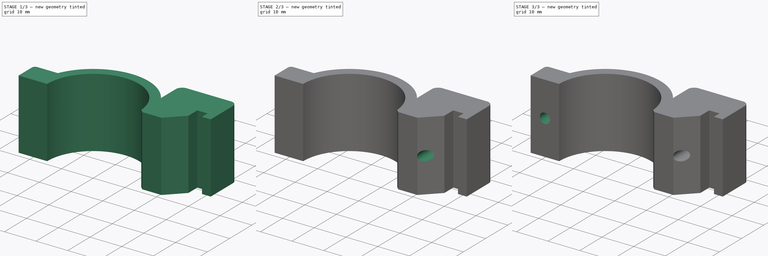
[diagram: build sequence overview — one tinted view per stage of 3, left to right]
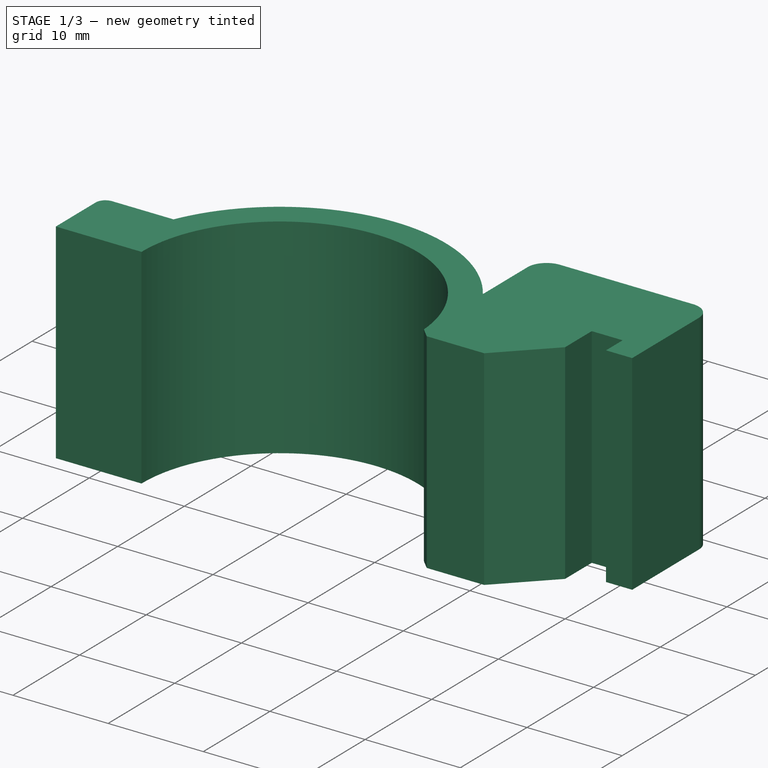
[diagram: stage 1 of 3 — iso view after this stage's code; geometry added in this stage tinted green]
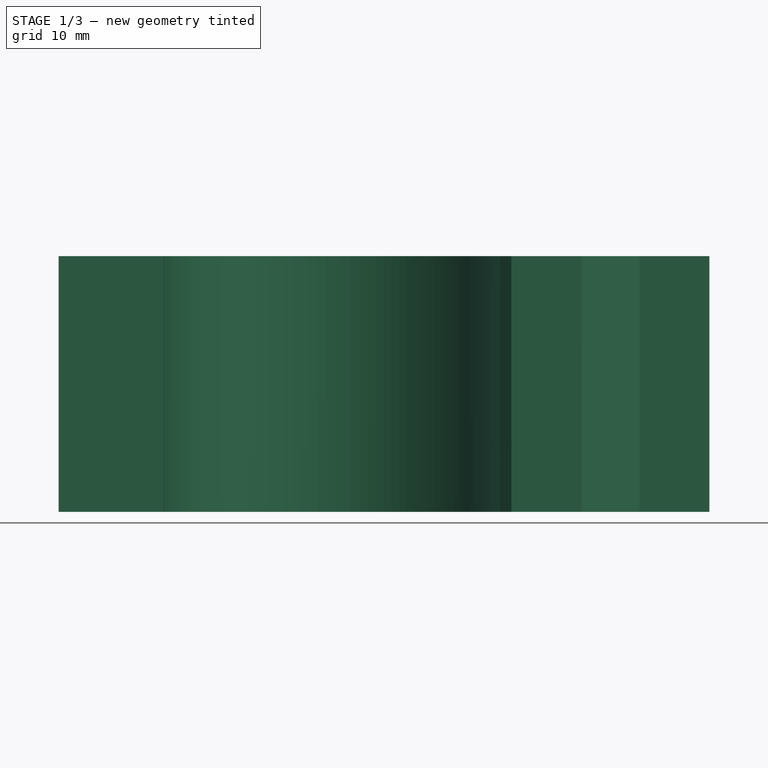
[diagram: stage 1 of 3 — front view after this stage's code; geometry added in this stage tinted green]
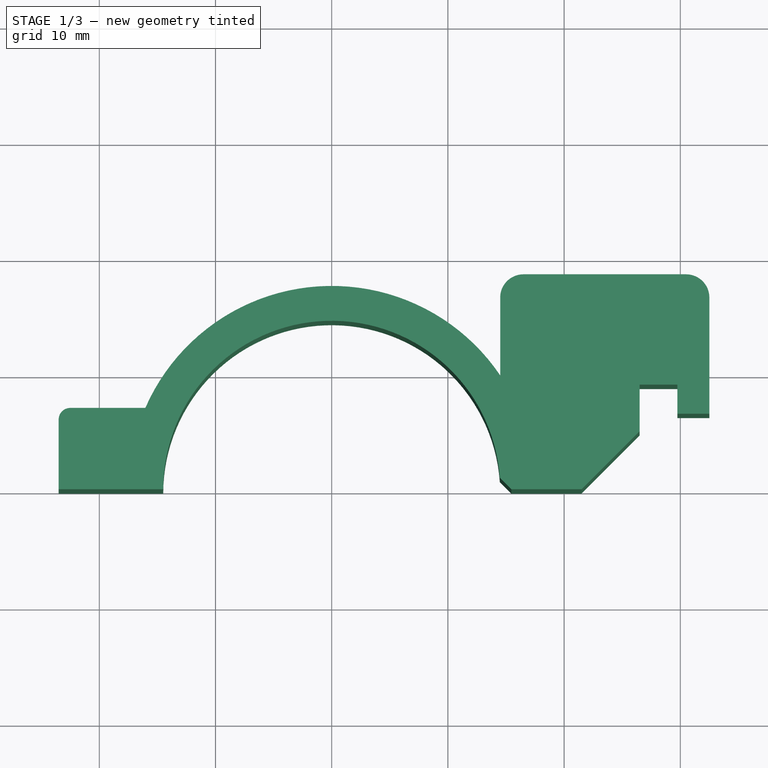
[diagram: stage 1 of 3 — top view after this stage's code; geometry added in this stage tinted green]
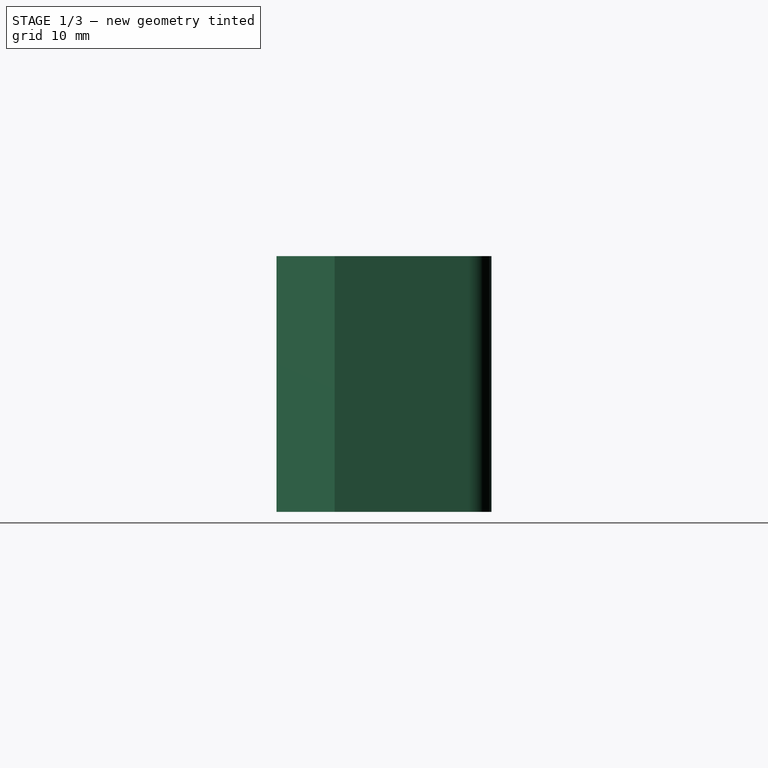
[diagram: stage 1 of 3 — right view after this stage's code; geometry added in this stage tinted green]
FCSTD DOCUMENT  (FreeCAD 0.14R3702 (Git))
Label: nerf_30mm_scope_mount
License: CC-BY 3.0
LicenseURL: http://creativecommons.org/licenses/by/3.0/
objects: Sketcher::SketchObject×5, PartDesign::Pocket×4, PartDesign::Pad×1
note: 15 computed .brp shape members not serialized (recipe doc carries the construction recipe); baked Part::Feature solids carry a one-line shape summary decoded from their .brp

FEATURE [Sketcher::SketchObject] Sketch  label="main body"
  sketch-geometry (18):
    g0: ArcOfCircle CenterX=0 CenterY=0 CenterZ=0 NormalX=0 NormalY=0 NormalZ=1 Radius=14.5 StartAngle=0.0690203 EndAngle=3.14159
    g1: ArcOfCircle CenterX=0 CenterY=0 CenterZ=0 NormalX=0 NormalY=0 NormalZ=1 Radius=17.5 StartAngle=0.594245 EndAngle=2.73008
    g2: LineSegment StartX=32.5 StartY=6.5 StartZ=0 EndX=32.5 EndY=16.5 EndZ=0
    g3: LineSegment StartX=30.5 StartY=18.5 StartZ=0 EndX=16.5 EndY=18.5 EndZ=0
    g4: LineSegment StartX=14.5 StartY=16.5 StartZ=0 EndX=14.5 EndY=9.79796 EndZ=0
    g5: LineSegment StartX=26.5 StartY=5 StartZ=0 EndX=26.5 EndY=9 EndZ=0
    g6: LineSegment StartX=26.5 StartY=9 StartZ=0 EndX=29.75 EndY=9 EndZ=0
    g7: LineSegment StartX=29.75 StartY=9 StartZ=0 EndX=29.75 EndY=6.5 EndZ=0
    g8: LineSegment StartX=29.75 StartY=6.5 StartZ=0 EndX=32.5 EndY=6.5 EndZ=0
    g9: LineSegment StartX=-14.5 StartY=0 StartZ=0 EndX=-23.5 EndY=0 EndZ=0
    g10: LineSegment StartX=-23.5 StartY=0 StartZ=0 EndX=-23.5 EndY=6 EndZ=0
    g11: LineSegment StartX=-22.5 StartY=7 StartZ=0 EndX=-16.039 EndY=7 EndZ=0
    g12: ArcOfCircle CenterX=16.5 CenterY=16.5 CenterZ=0 NormalX=0 NormalY=0 NormalZ=1 Radius=2 StartAngle=1.5708 EndAngle=3.14159
    g13: ArcOfCircle CenterX=-22.5 CenterY=6 CenterZ=0 NormalX=0 NormalY=0 NormalZ=1 Radius=1 StartAngle=1.5708 EndAngle=3.14159
    g14: LineSegment StartX=15.4655 StartY=0 StartZ=0 EndX=21.5 EndY=0 EndZ=0
    g15: ArcOfCircle CenterX=30.5 CenterY=16.5 CenterZ=0 NormalX=0 NormalY=0 NormalZ=1 Radius=2 StartAngle=0 EndAngle=1.5708
    g16: LineSegment StartX=26.5 StartY=5 StartZ=0 EndX=21.5 EndY=0 EndZ=0
    g17: LineSegment StartX=14.4655 StartY=1 StartZ=0 EndX=15.4655 EndY=0 EndZ=0
  constraints (51):
    c: Coincident(g0,g-1)
    c: Coincident(g1,g-1)
    c: Horizontal(g3)
    c: Vertical(g2)
    c: Vertical(g4)
    c: Coincident(g1,g4)
    c: Radius(g1) = 17.5
    c: Radius(g0) = 14.5
    c: DistanceX(g-1,g1) = 14.5
    c: Coincident(g5,g6)
    c: Horizontal(g6)
    c: Coincident(g6,g7)
    c: Vertical(g7)
    c: Coincident(g7,g8)
    c: Coincident(g8,g2)
    c: Horizontal(g8)
    c: DistanceX(g8) = 2.75
    c: DistanceX(g6) = 3.25
    c: Coincident(g9,g10)
    c: Horizontal(g9)
    c: Horizontal(g11)
    c: Vertical(g10)
    c: Coincident(g9,g0)
    c: Coincident(g11,g1)
    c: DistanceX(g9) = -9
    c: PointOnObject(g0,g-1)
    c: Tangent(g3,g12)
    c: Tangent(g4,g12)
    c: Radius(g12) = 2
    c: Tangent(g10,g13)
    c: Tangent(g11,g13)
    c: Radius(g13) = 1
    c: DistanceY(g11,g9) = -7
    c: Horizontal(g14)
    c: Tangent(g2,g15)
    c: Tangent(g3,g15)
    c: Radius(g15) = 2
    c: DistanceY(g3,g2) = -12
    c: DistanceY(g7,g6) = 2.5
    c: Vertical(g5)
    c: DistanceY(g5) = 4
    c: Coincident(g16,g5)
    c: Coincident(g16,g14)
    c: Angle(g16) = -2.35619
    c: DistanceY(g6,g14) = -9
    c: Angle(g17) = -0.785398
    c: Coincident(g14,g17)
    c: Coincident(g0,g17)
    c: DistanceX(g14,g0) = -1
    c: PointOnObject(g14,g-1)
    c: DistanceX(g1,g5) = 12
FEATURE [PartDesign::Pad] Pad
  Length = 22
  Length2 = 100
  Sketch = -> Sketch
  Type = 0
FEATURE [Sketcher::SketchObject] Sketch002  label="bottom_nut_inset"
  Placement = pos=(0,18.5,0) rot=(0,0.707107,0.707107;3.14159rad)
  Support = -> Pad [Face9]
  sketch-geometry (7):
    g0: Circle CenterX=-23 CenterY=11 CenterZ=0 NormalX=0 NormalY=0 NormalZ=1 Radius=2.75
    g1: LineSegment StartX=-24.5877 StartY=13.75 StartZ=0 EndX=-21.4123 EndY=13.75 EndZ=0
    g2: LineSegment StartX=-21.4123 StartY=13.75 StartZ=0 EndX=-19.8246 EndY=11 EndZ=0
    g3: LineSegment StartX=-19.8246 StartY=11 StartZ=0 EndX=-21.4123 EndY=8.25 EndZ=0
    g4: LineSegment StartX=-21.4123 StartY=8.25 StartZ=0 EndX=-24.5877 EndY=8.25 EndZ=0
    g5: LineSegment StartX=-24.5877 StartY=8.25 StartZ=0 EndX=-26.1754 EndY=11 EndZ=0
    g6: LineSegment StartX=-26.1754 StartY=11 StartZ=0 EndX=-24.5877 EndY=13.75 EndZ=0
  constraints (22):
    c: DistanceY(g-1,g0) = 11
    c: DistanceX(g-1,g0) = -23
    c: Radius(g0) = 2.75
    c: Horizontal(g1)
    c: Tangent(g1,g0)
    c: Coincident(g1,g2)
    c: Tangent(g2,g0)
    c: Coincident(g2,g3)
    c: Tangent(g3,g0)
    c: Coincident(g3,g4)
    c: Horizontal(g4)
    c: Tangent(g4,g0)
    c: Coincident(g4,g5)
    c: Tangent(g5,g0)
    c: Coincident(g5,g6)
    c: Coincident(g6,g1)
    c: Tangent(g6,g0)
    c: Equal(g6,g5)
    c: Equal(g5,g4)
    c: Equal(g4,g3)
    c: Equal(g3,g2)
    c: Equal(g2,g1)
FEATURE [PartDesign::Pocket] Pocket
  Length = 3
  Sketch = -> Sketch002
  Type = 0
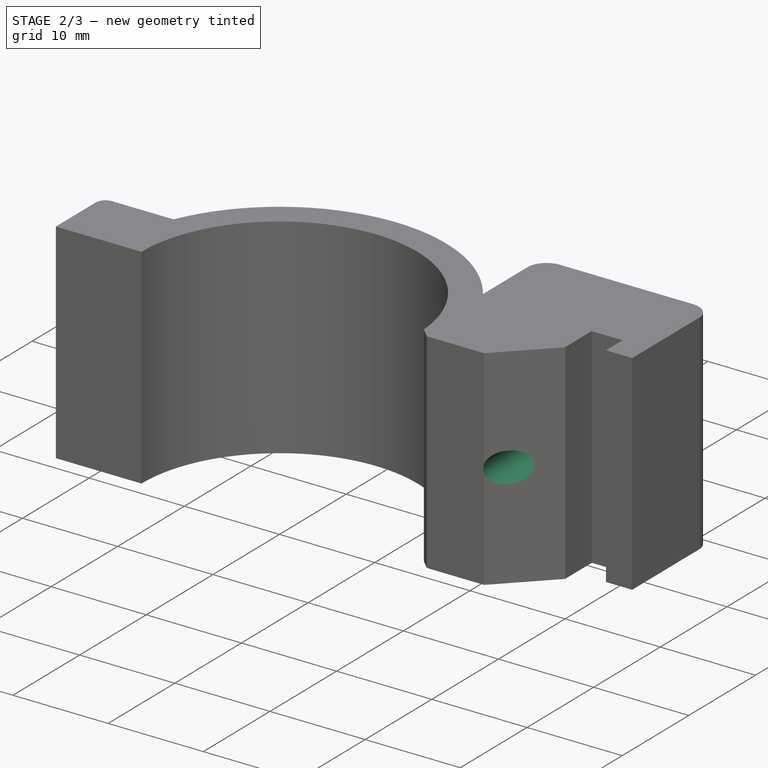
[diagram: stage 2 of 3 — iso view after this stage's code; geometry added in this stage tinted green]
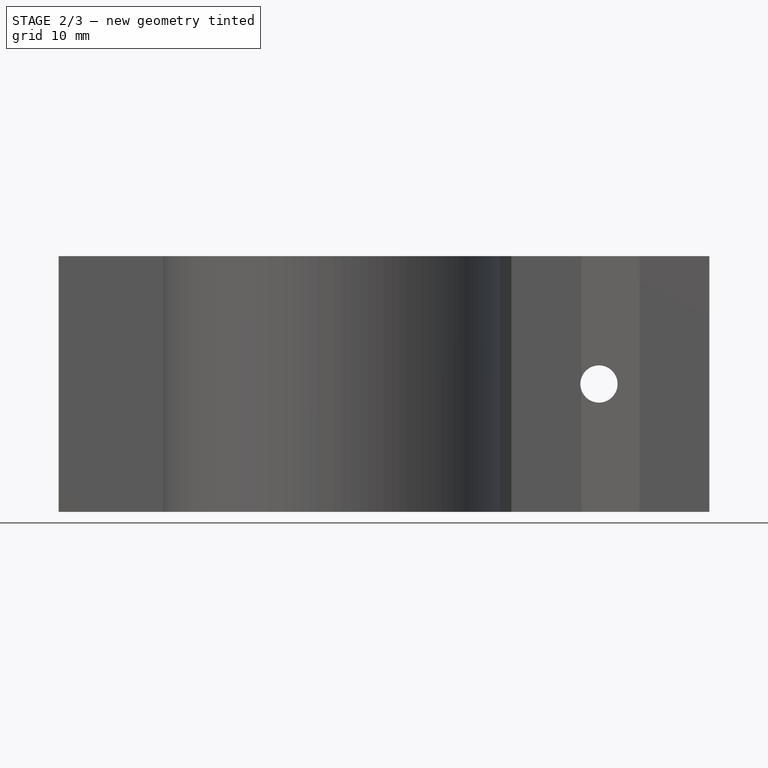
[diagram: stage 2 of 3 — front view after this stage's code; geometry added in this stage tinted green]
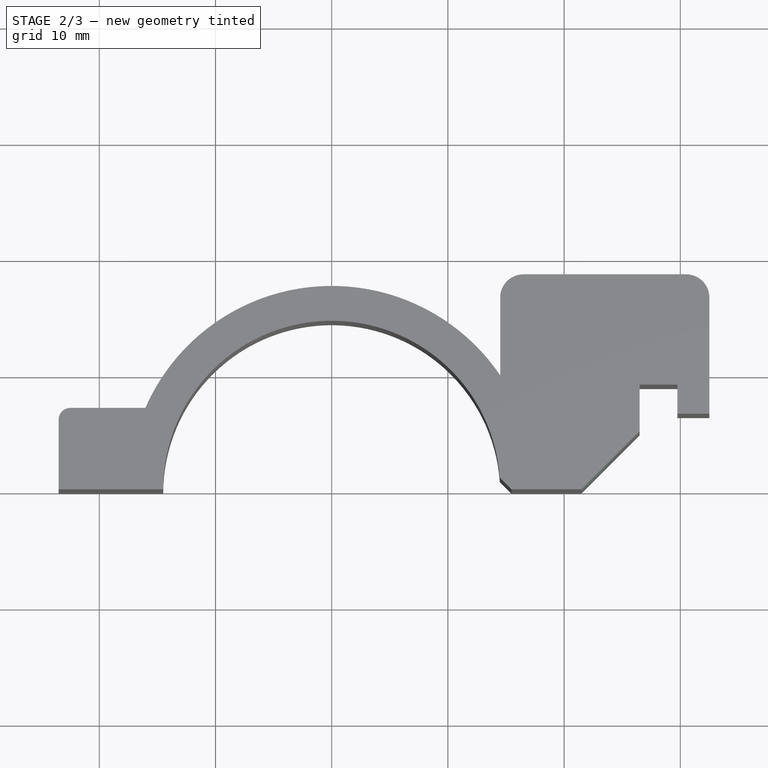
[diagram: stage 2 of 3 — top view after this stage's code; geometry added in this stage tinted green]
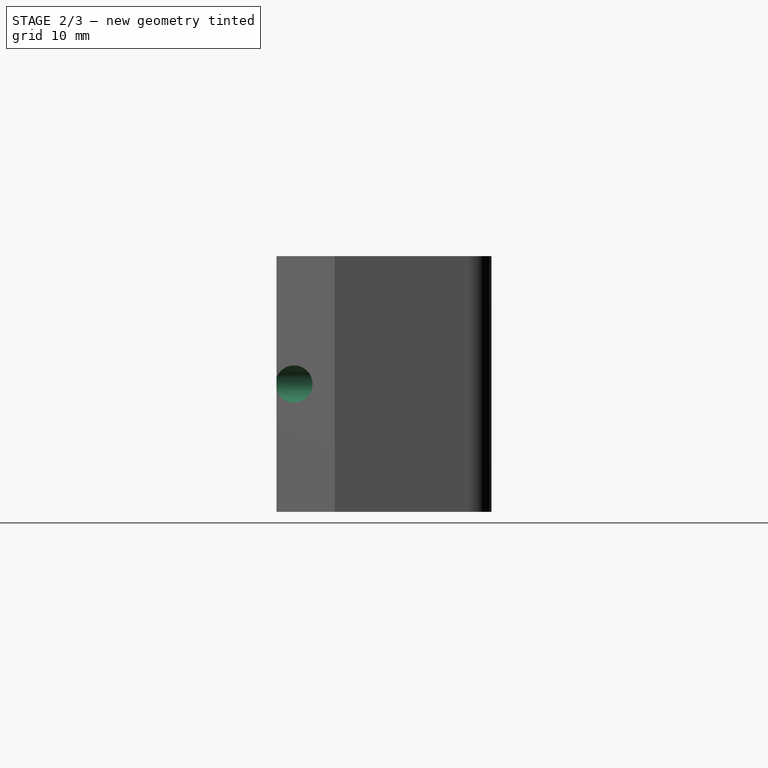
[diagram: stage 2 of 3 — right view after this stage's code; geometry added in this stage tinted green]
FEATURE [Sketcher::SketchObject] Sketch001  label="bottom_screw_hole"
  Placement = pos=(0,18.5,0) rot=(0,0.707107,0.707107;3.14159rad)
  Support = -> Pocket [Face13]
  sketch-geometry (1):
    g0: Circle CenterX=-23 CenterY=11 CenterZ=0 NormalX=0 NormalY=0 NormalZ=1 Radius=1.6
  constraints (3):
    c: Radius(g0) = 1.6
    c: DistanceY(g-1,g0) = 11
    c: DistanceX(g-1,g0) = -23
FEATURE [PartDesign::Pocket] Pocket001
  Length = 20
  Sketch = -> Sketch001
  Type = 0
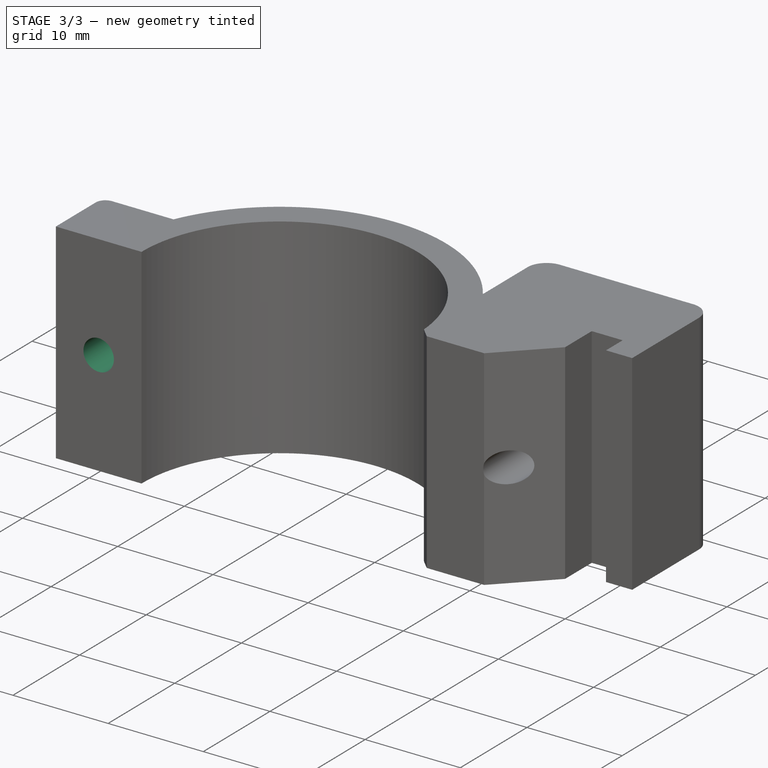
[diagram: stage 3 of 3 — iso view after this stage's code; geometry added in this stage tinted green]
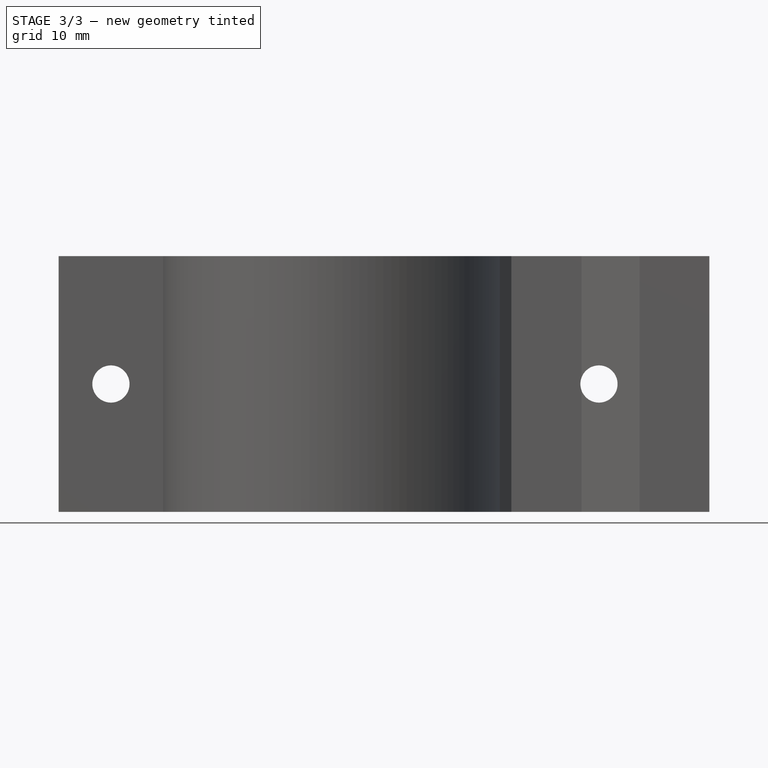
[diagram: stage 3 of 3 — front view after this stage's code; geometry added in this stage tinted green]
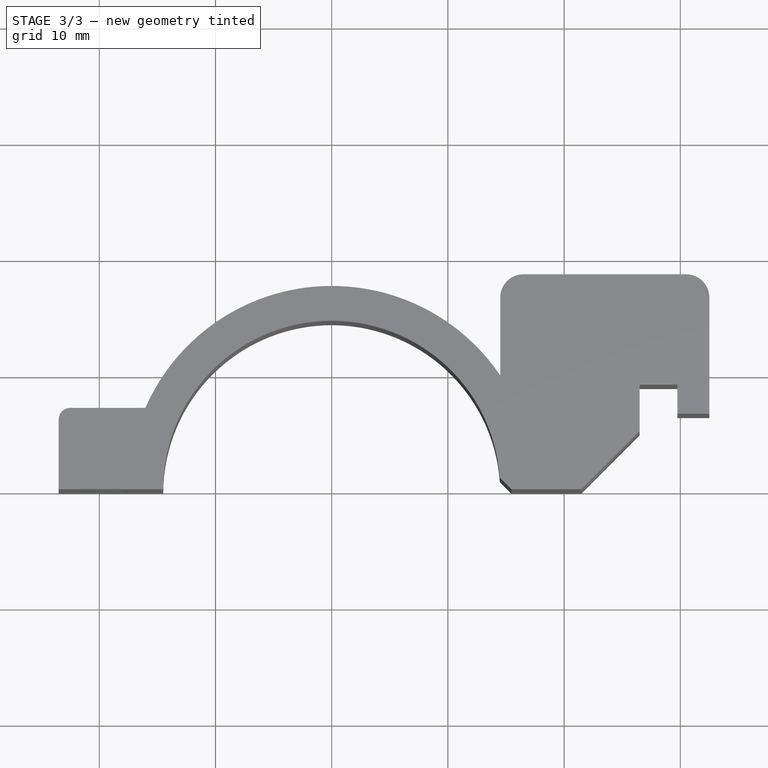
[diagram: stage 3 of 3 — top view after this stage's code; geometry added in this stage tinted green]
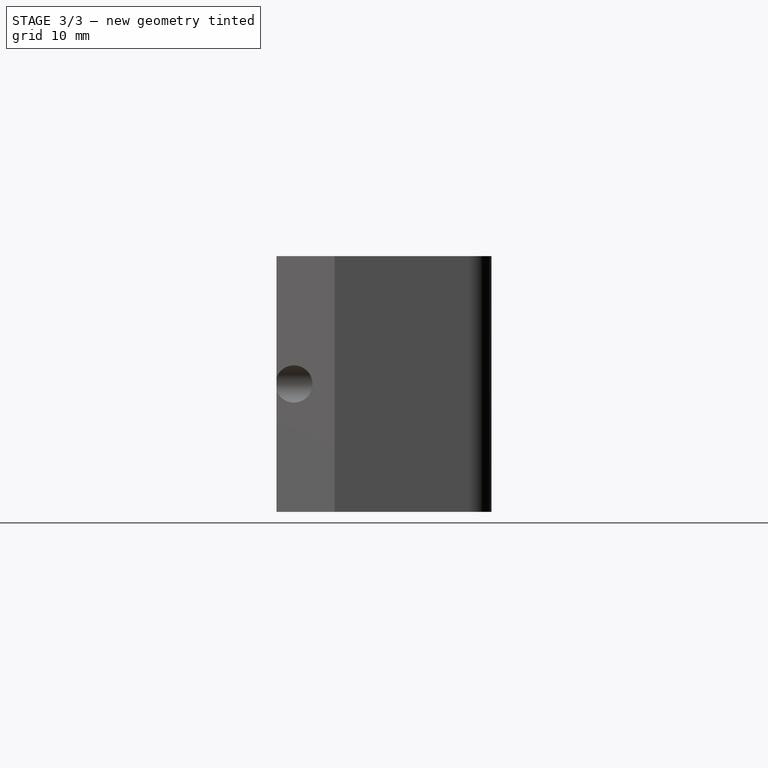
[diagram: stage 3 of 3 — right view after this stage's code; geometry added in this stage tinted green]
FEATURE [Sketcher::SketchObject] Sketch003  label="top screw hole"
  Placement = pos=(0,7,0) rot=(0,0.707107,0.707107;3.14159rad)
  Support = -> Pocket001 [Face9]
  sketch-geometry (1):
    g0: Circle CenterX=19 CenterY=11 CenterZ=0 NormalX=0 NormalY=0 NormalZ=1 Radius=1.6
  constraints (3):
    c: DistanceX(g0) = 19
    c: DistanceY(g-1,g0) = 11
    c: Radius(g0) = 1.6
FEATURE [PartDesign::Pocket] Pocket002
  Length = 7
  Sketch = -> Sketch003
  Type = 0
FEATURE [Sketcher::SketchObject] Sketch004  label="top_nut_inset"
  Placement = pos=(0,7,0) rot=(0,0.707107,0.707107;3.14159rad)
  Support = -> Pocket002 [Face10]
  sketch-geometry (7):
    g0: Circle CenterX=19 CenterY=11 CenterZ=0 NormalX=0 NormalY=0 NormalZ=1 Radius=2.75
    g1: LineSegment StartX=17.4123 StartY=13.75 StartZ=0 EndX=20.5877 EndY=13.75 EndZ=0
    g2: LineSegment StartX=20.5877 StartY=13.75 StartZ=0 EndX=22.1754 EndY=11 EndZ=0
    g3: LineSegment StartX=22.1754 StartY=11 StartZ=0 EndX=20.5877 EndY=8.25 EndZ=0
    g4: LineSegment StartX=20.5877 StartY=8.25 StartZ=0 EndX=17.4123 EndY=8.25 EndZ=0
    g5: LineSegment StartX=17.4123 StartY=8.25 StartZ=0 EndX=15.8246 EndY=11 EndZ=0
    g6: LineSegment StartX=15.8246 StartY=11 StartZ=0 EndX=17.4123 EndY=13.75 EndZ=0
  constraints (22):
    c: DistanceY(g-1,g0) = 11
    c: Radius(g0) = 2.75
    c: Horizontal(g1)
    c: Tangent(g1,g0)
    c: Coincident(g1,g2)
    c: Tangent(g2,g0)
    c: Coincident(g2,g3)
    c: Tangent(g3,g0)
    c: Coincident(g3,g4)
    c: Horizontal(g4)
    c: Tangent(g4,g0)
    c: Coincident(g4,g5)
    c: Tangent(g5,g0)
    c: Coincident(g5,g6)
    c: Coincident(g6,g1)
    c: Tangent(g6,g0)
    c: Equal(g6,g5)
    c: Equal(g5,g4)
    c: Equal(g4,g3)
    c: Equal(g3,g2)
    c: Equal(g2,g1)
    c: DistanceX(g-1,g0) = 19
FEATURE [PartDesign::Pocket] Pocket003
  Length = 3
  Sketch = -> Sketch004
  Type = 0
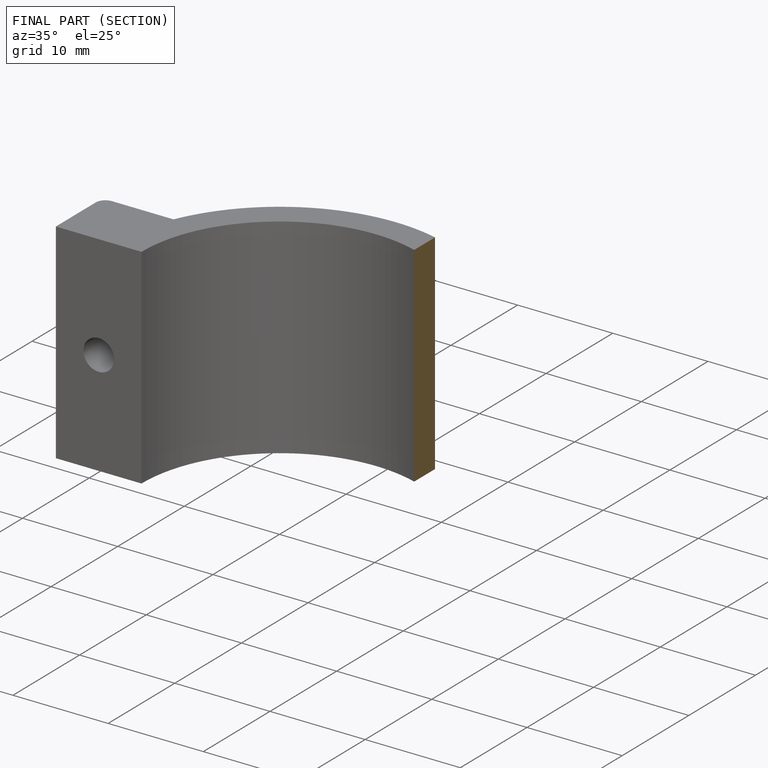
[diagram: finished part — half-section view (interior)]
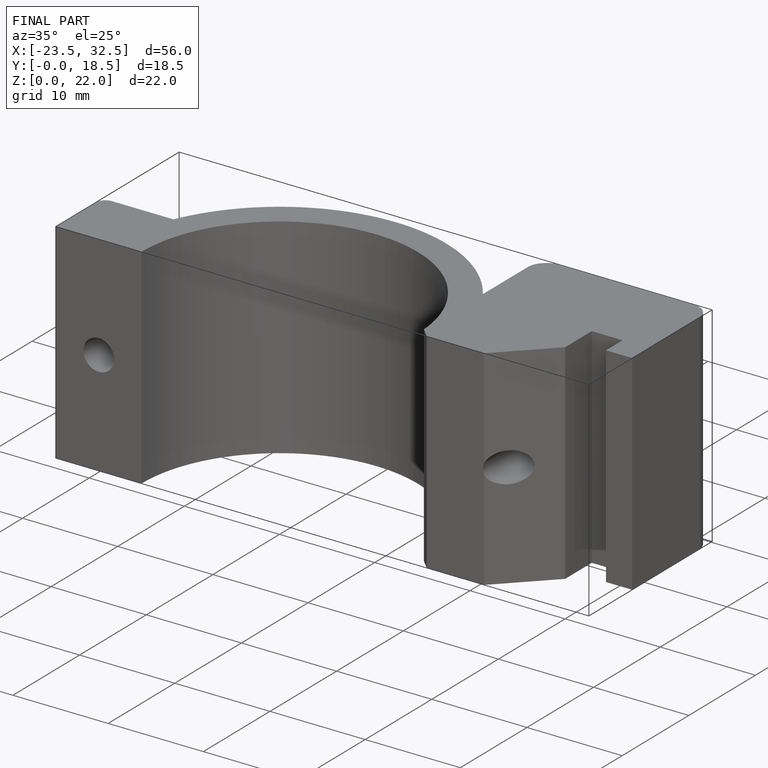
[diagram: finished part — iso view with bounding-box wireframe]
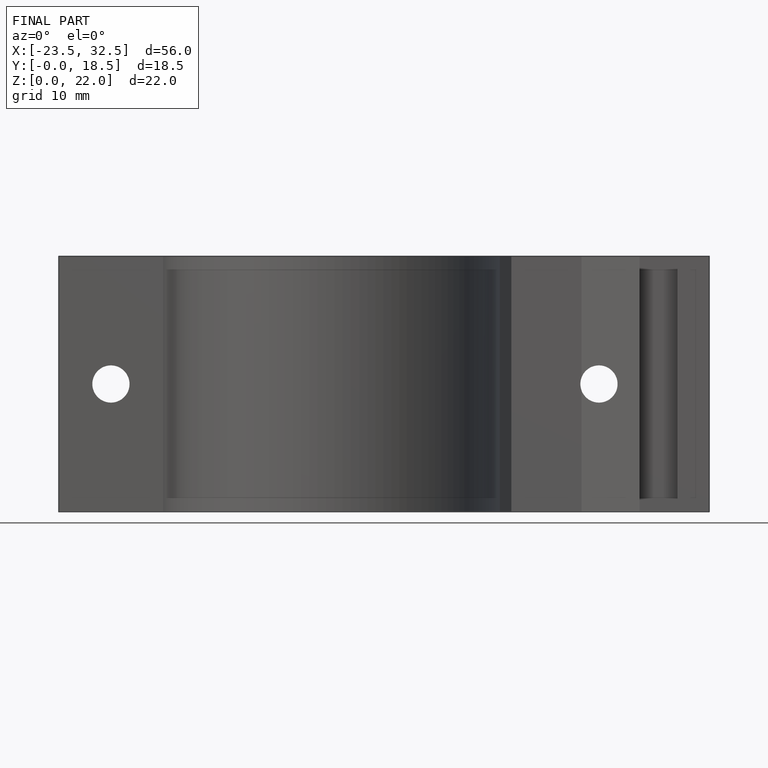
[diagram: finished part — front view with bounding-box wireframe]
